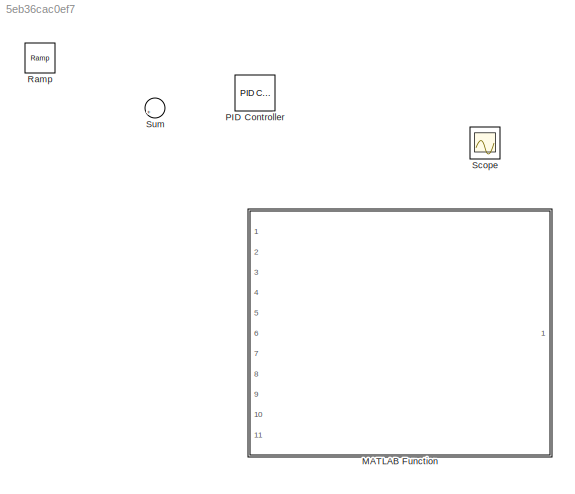
MODEL slx_5eb36cac0ef7
KIND model
CONFIG AbsTol = auto
CONFIG EnableMultiTasking = off
CONFIG FixedStep = auto
CONFIG MaxStep = auto
CONFIG MinStep = auto
CONFIG RelTol = 1e-3
CONFIG SampleTimeConstraint = Unconstrained
CONFIG Solver = VariableStepAuto
CONFIG SolverName = VariableStepAuto
CONFIG StartTime = 0.0
CONFIG StopTime = time
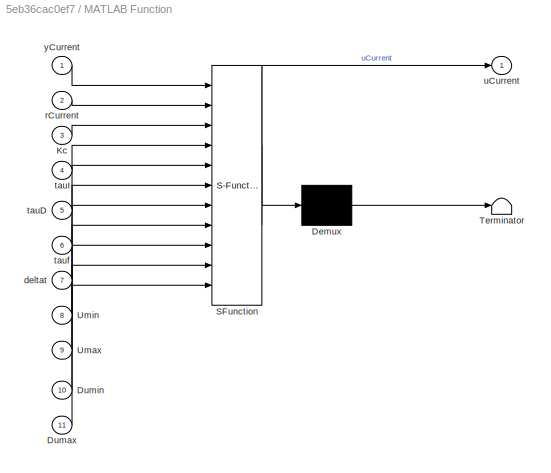
BLOCK [SubSystem] MATLAB Function
  ErrorFcn = Stateflow.Translate.translate
  PermitHierarchicalResolution = ExplicitOnly
  Ports = [11, 1]
  RequestExecContextInheritance = off
  SFBlockType = MATLAB Function
  TreatAsAtomicUnit = on
BLOCK [Demux] MATLAB Function/ Demux 
  Outputs = 1
  Ports = [1, 1]
BLOCK [S-Function] MATLAB Function/ SFunction 
  EnableBusSupport = on
  FunctionName = sf_sfun
  PortCounts = [11 2]
  Ports = [11, 2]
  SFcnIsStateOwnerBlock = off
  SFunctionDeploymentMode = off
  Tag = Stateflow S-Function 2
BLOCK [Terminator] MATLAB Function/ Terminator 
BLOCK [Inport] MATLAB Function/Dumax
  IconDisplay = Port number
  Port = 11
BLOCK [Inport] MATLAB Function/Dumin
  IconDisplay = Port number
  Port = 10
BLOCK [Inport] MATLAB Function/Kc
  IconDisplay = Port number
  Port = 3
BLOCK [Inport] MATLAB Function/Umax
  IconDisplay = Port number
  Port = 9
BLOCK [Inport] MATLAB Function/Umin
  IconDisplay = Port number
  Port = 8
BLOCK [Inport] MATLAB Function/deltat
  IconDisplay = Port number
  Port = 7
BLOCK [Inport] MATLAB Function/rCurrent
  IconDisplay = Port number
  Port = 2
BLOCK [Inport] MATLAB Function/tauD
  IconDisplay = Port number
  Port = 5
BLOCK [Inport] MATLAB Function/tauI
  IconDisplay = Port number
  Port = 4
BLOCK [Inport] MATLAB Function/tauf
  IconDisplay = Port number
  Port = 6
BLOCK [Outport] MATLAB Function/uCurrent
  IconDisplay = Port number
BLOCK [Inport] MATLAB Function/yCurrent
  IconDisplay = Port number
BLOCK [Reference] PID Controller  REF=simulink/Continuous/PID Controller
  Ports = [1, 1]
  SourceBlock = simulink/Continuous/PID Controller
  SourceProductBaseCode = SL
  SourceProductName = Simulink
  SourceType = PID 1dof
BLOCK [Reference] Ramp  REF=simulink/Sources/Ramp
  Ports = [0, 1]
  SourceBlock = simulink/Sources/Ramp
  SourceProductBaseCode = SL
  SourceProductName = Simulink
  SourceType = Ramp
BLOCK [Scope] Scope
  Floating = off
  NumInputPorts = 1
  Ports = [1]
  ScopeSpecificationString = Simulink.scopes.TimeScopeBlockCfg('CurrentConfiguration', extmgr.ConfigurationSet(extmgr.Configuration('Core','General UI',true),extmgr.Configuration('Core','Source UI',true),extmgr.Configuration('Sources','WiredSimulink',true),extmgr.Configuration('Visuals','Time Domain',true,'SerializedDisplays',{struct('MinYLimReal','-1.00000','MaxYLimReal','1.00000','YLabelReal','','MinYLimMag','0.00000','MaxY...<+1419ch>
BLOCK [Sum] Sum
  IconShape = round
  InputSameDT = off
  Inputs = |++
  OutDataTypeStr = Inherit: Inherit via internal rule
  Ports = [2, 1]
  SaturateOnIntegerOverflow = off
CHART MATLAB Function states=1 transitions=1
  STATE_LABEL 'eML_blk_kernel()'
  STATE_LABEL 'SCRIPT:\nfunction uCurrent = PIDV(yCurrent,rCurrent,Kc,tauI,tauD,tauf, deltat,Umin,Umax,Dumin,Dumax)\n    persistent uPast \n    if isempty(uPast)\n        uPast=0;\n    end\n    \n    persistent yPast \n    if isempty(yPast)\n        yPast=0; \n    end\n    \n    persistent uDPast \n    if isempty(uDPast)\n        uDPast=0;\n    end\n    \n    persistent rPast \n    if isempty(rPast)\n        rPast=0;\n    end\n    \n...<+719ch>'
